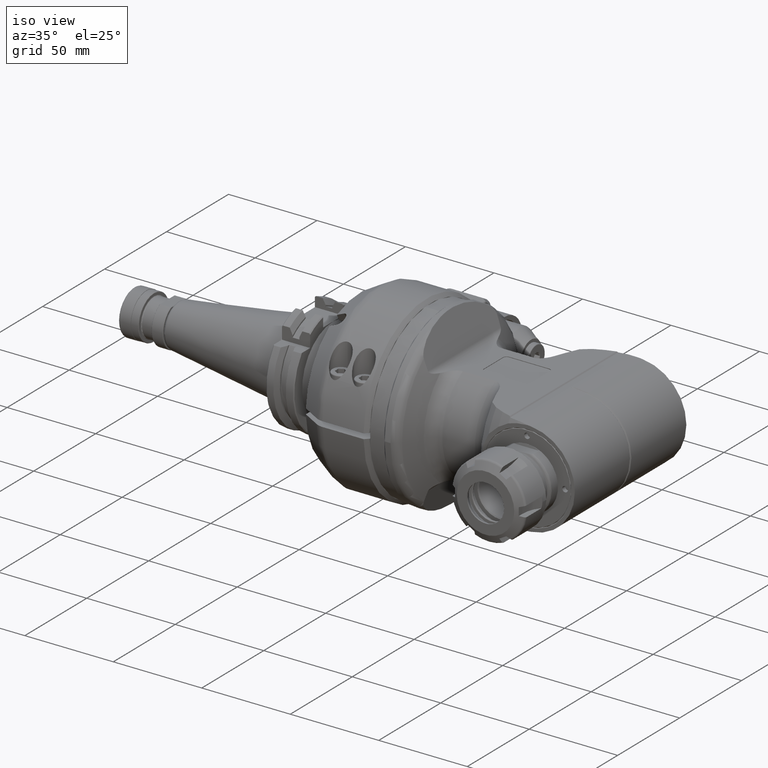
[diagram: clean part render]
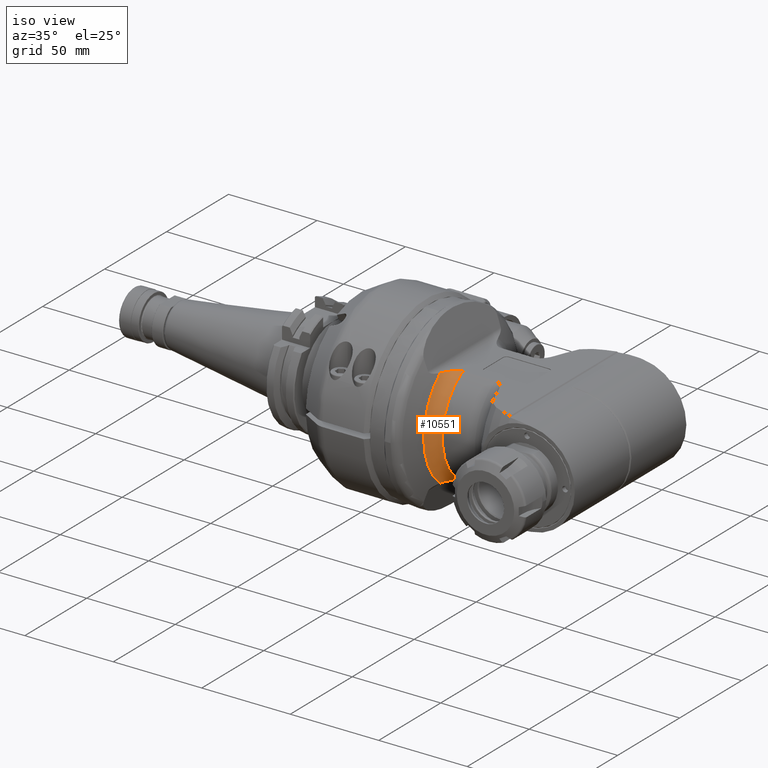
[diagram: same view with one face highlighted and labeled with its STEP entity id]
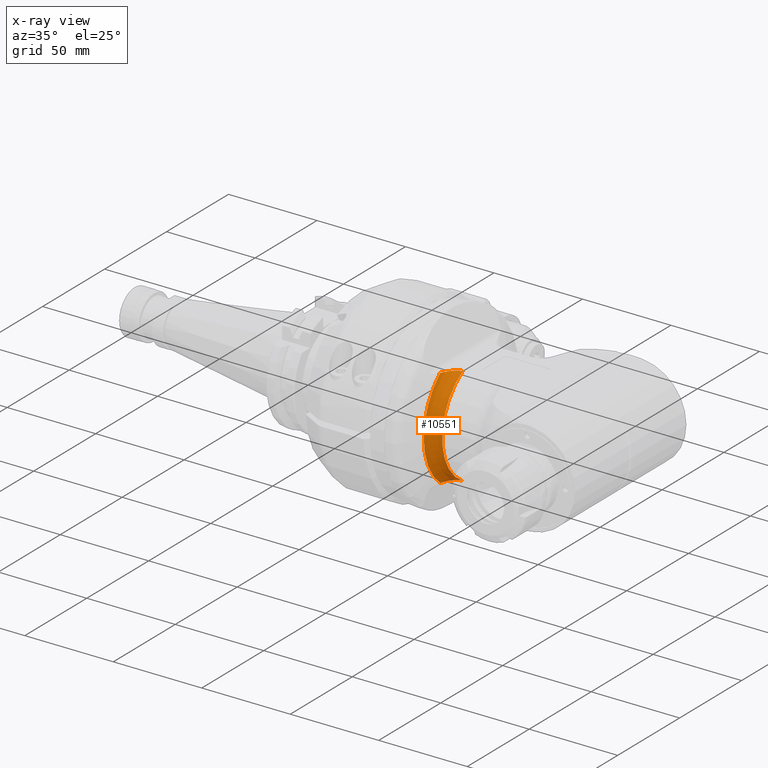
[diagram: x-ray of the same camera — body ghosted, the highlighted face saturated]
A machine part, iso view. The second image highlights one B-rep face of the part: STEP entity #10551.
The next image is the same camera in x-ray: the body ghosted, the highlighted face saturated — about 1% of this face is hidden behind the body in this view.
In plain terms, the highlighted toroidal blend (fillet) surface has major radius 40 mm and minor (blend) radius 8 mm.
Its self-contained STEP definition (entity closure, byte-faithful):
#121=TOROIDAL_SURFACE('',#11531,40.,8.);
#1229=FACE_OUTER_BOUND('',#1912,.T.);
#1912=EDGE_LOOP('',(#9015,#9016,#9017,#9018,#9019,#9020));
#2457=CIRCLE('',#11532,32.);
#2458=CIRCLE('',#11533,36.61905390607);
#2799=B_SPLINE_CURVE_WITH_KNOTS('',3,(#55177,#55178,#55179,#55180,#55181,
#55182,#55183,#55184,#55185,#55186,#55187,#55188),.UNSPECIFIED.,.F.,.F.,
(4,2,2,2,2,4),(-2.93597407218818,-2.82337724519284,-2.69378102431655,-2.51186335157645,
-2.32994567883634,-2.12339512890436),.UNSPECIFIED.);
#2806=B_SPLINE_CURVE_WITH_KNOTS('',3,(#55324,#55325,#55326,#55327),
 .UNSPECIFIED.,.F.,.F.,(4,4),(-4.28837743495635,-4.06515165870551),
 .UNSPECIFIED.);
#2807=B_SPLINE_CURVE_WITH_KNOTS('',3,(#55334,#55335,#55336,#55337,#55338,
#55339),.UNSPECIFIED.,.F.,.F.,(4,2,4),(1.6272968564971,1.71536395114816,
1.75183119798568),.UNSPECIFIED.);
#2808=B_SPLINE_CURVE_WITH_KNOTS('',3,(#55340,#55341,#55342,#55343,#55344,
#55345,#55346,#55347,#55348,#55349,#55350,#55351),.UNSPECIFIED.,.F.,.F.,
(4,2,2,2,2,4),(-2.93602857360432,-2.81022163538033,-2.66127008993984,-2.44574033067297,
-2.2302105714061,-2.12135907273542),.UNSPECIFIED.);
#4890=VERTEX_POINT('',#55173);
#4892=VERTEX_POINT('',#55176);
#4914=VERTEX_POINT('',#55307);
#4915=VERTEX_POINT('',#55329);
#4916=VERTEX_POINT('',#55331);
#4917=VERTEX_POINT('',#55333);
#6308=EDGE_CURVE('',#4892,#4890,#2799,.T.);
#6333=EDGE_CURVE('',#4914,#4890,#2806,.T.);
#6334=EDGE_CURVE('',#4915,#4892,#2457,.T.);
#6335=EDGE_CURVE('',#4914,#4916,#2458,.T.);
#6336=EDGE_CURVE('',#4916,#4917,#2807,.T.);
#6337=EDGE_CURVE('',#4915,#4917,#2808,.T.);
#9015=ORIENTED_EDGE('',*,*,#6334,.T.);
#9016=ORIENTED_EDGE('',*,*,#6308,.T.);
#9017=ORIENTED_EDGE('',*,*,#6333,.F.);
#9018=ORIENTED_EDGE('',*,*,#6335,.T.);
#9019=ORIENTED_EDGE('',*,*,#6336,.T.);
#9020=ORIENTED_EDGE('',*,*,#6337,.F.);
#10551=ADVANCED_FACE('',(#1229),#121,.F.);
#11531=AXIS2_PLACEMENT_3D('',#55328,#13862,#13863);
#11532=AXIS2_PLACEMENT_3D('',#55330,#13864,#13865);
#11533=AXIS2_PLACEMENT_3D('',#55332,#13866,#13867);
#13862=DIRECTION('center_axis',(-1.,0.,0.));
#13863=DIRECTION('ref_axis',(0.,-1.,-1.22464679914735E-16));
#13864=DIRECTION('center_axis',(-1.,0.,0.));
#13865=DIRECTION('ref_axis',(0.,-0.484122918275906,-0.875000000000012));
#13866=DIRECTION('center_axis',(1.,0.,0.));
#13867=DIRECTION('ref_axis',(0.,-0.639797587775472,0.768543457897266));
#55173=CARTESIAN_POINT('',(26.80083020115,-20.88509764292,27.99999999999));
#55176=CARTESIAN_POINT('',(32.99009987301,-15.49193338483,28.));
#55177=CARTESIAN_POINT('Ctrl Pts',(32.99009987301,-15.4919333848297,28.));
#55178=CARTESIAN_POINT('Ctrl Pts',(32.6147771163589,-15.4919333848297,28.));
#55179=CARTESIAN_POINT('Ctrl Pts',(32.1698889724911,-15.5620993782773,28.));
#55180=CARTESIAN_POINT('Ctrl Pts',(31.3977248933945,-15.7977099228234,28.));
#55181=CARTESIAN_POINT('Ctrl Pts',(30.9310586317008,-16.0234209939818,28.));
#55182=CARTESIAN_POINT('Ctrl Pts',(30.053798895377,-16.5789816504194,28.));
#55183=CARTESIAN_POINT('Ctrl Pts',(29.550628761613,-17.0081024201193,28.));
#55184=CARTESIAN_POINT('Ctrl Pts',(28.6408811523053,-17.9652022129463,28.));
#55185=CARTESIAN_POINT('Ctrl Pts',(28.233192022949,-18.4921239661789,28.));
#55186=CARTESIAN_POINT('Ctrl Pts',(27.5057921800039,-19.563403638085,28.));
#55187=CARTESIAN_POINT('Ctrl Pts',(27.1316615896629,-20.2094567222412,28.));
#55188=CARTESIAN_POINT('Ctrl Pts',(26.8008302011161,-20.8850976429034,28.));
#55307=CARTESIAN_POINT('',(25.73963757672,-23.42878235573,28.1433343139));
#55324=CARTESIAN_POINT('Ctrl Pts',(25.7396375767161,-23.4287823557287,28.1433343139008));
#55325=CARTESIAN_POINT('Ctrl Pts',(26.0321978822115,-22.5448627958057,28.0628339896322));
#55326=CARTESIAN_POINT('Ctrl Pts',(26.3924447197747,-21.7191235308927,27.99999999998));
#55327=CARTESIAN_POINT('Ctrl Pts',(26.8008302011161,-20.8850976429034,28.));
#55328=CARTESIAN_POINT('Origin',(32.99009987301,0.,0.));
#55329=CARTESIAN_POINT('',(32.99009987301,-15.49193338483,-28.));
#55330=CARTESIAN_POINT('Origin',(32.99009987301,0.,0.));
#55331=CARTESIAN_POINT('',(25.73963757704,-23.42878235483,-28.1433343138));
#55332=CARTESIAN_POINT('Origin',(25.73963757672,0.,0.));
#55333=CARTESIAN_POINT('',(26.80083020092,-20.88509764331,-28.));
#55334=CARTESIAN_POINT('Ctrl Pts',(25.7396375770167,-23.4287823548206,-28.1433343138181));
#55335=CARTESIAN_POINT('Ctrl Pts',(25.9417492668906,-22.8181373952126,-28.0877216546064));
#55336=CARTESIAN_POINT('Ctrl Pts',(26.1821006615703,-22.2190845095823,-28.0386263368574));
#55337=CARTESIAN_POINT('Ctrl Pts',(26.5687080521752,-21.3664158943553,-28.0051242811777));
#55338=CARTESIAN_POINT('Ctrl Pts',(26.6841485560425,-21.1233909150549,-28.0000000000001));
#55339=CARTESIAN_POINT('Ctrl Pts',(26.8008302009176,-20.8850976433088,-28.));
#55340=CARTESIAN_POINT('Ctrl Pts',(32.99009987301,-15.4919333848297,-28.));
#55341=CARTESIAN_POINT('Ctrl Pts',(32.5707434122634,-15.4919333848297,-28.));
#55342=CARTESIAN_POINT('Ctrl Pts',(32.0752042743193,-15.5795640532649,-28.));
#55343=CARTESIAN_POINT('Ctrl Pts',(31.2080074002573,-15.8741350537825,-28.));
#55344=CARTESIAN_POINT('Ctrl Pts',(30.6847533920019,-16.1590740807169,-28.));
#55345=CARTESIAN_POINT('Ctrl Pts',(29.69452279622,-16.8630037215125,-28.));
#55346=CARTESIAN_POINT('Ctrl Pts',(29.1325458604225,-17.407552366296,-28.));
#55347=CARTESIAN_POINT('Ctrl Pts',(28.1323512917126,-18.608539452852,-28.));
#55348=CARTESIAN_POINT('Ctrl Pts',(27.6932483097344,-19.2642402902718,-28.));
#55349=CARTESIAN_POINT('Ctrl Pts',(27.1514292838462,-20.1999639756728,-28.));
#55350=CARTESIAN_POINT('Ctrl Pts',(26.9719387319417,-20.5356509781966,-28.));
#55351=CARTESIAN_POINT('Ctrl Pts',(26.8008302009176,-20.8850976433088,-28.));